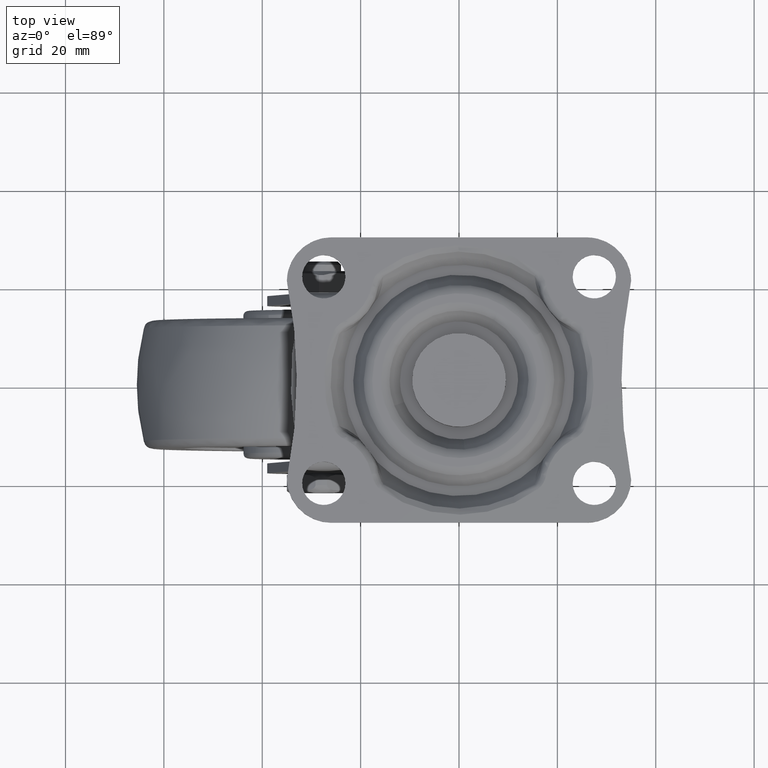
[diagram: clean part render]
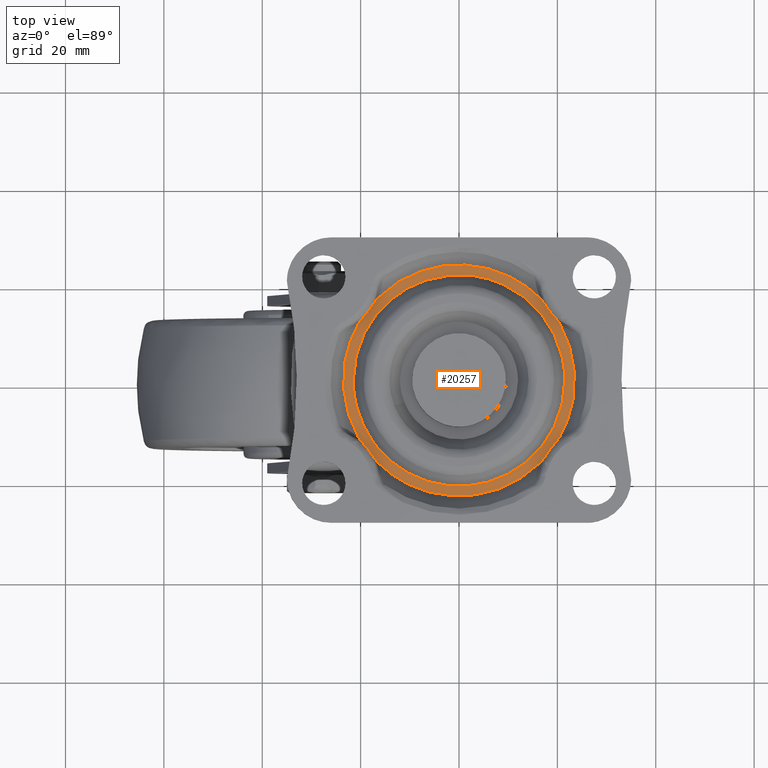
[diagram: same view with one face highlighted and labeled with its STEP entity id]
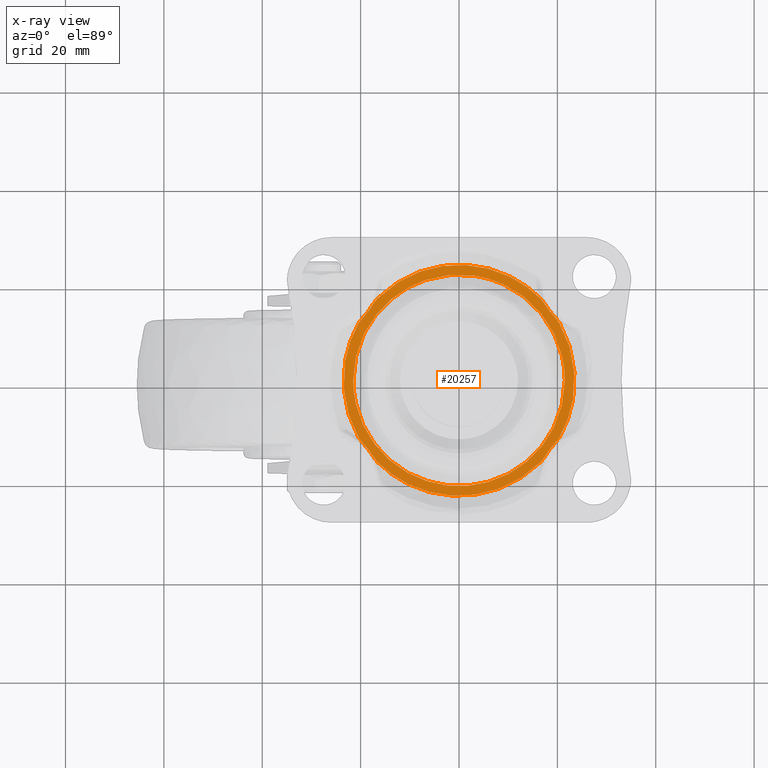
[diagram: x-ray of the same camera — body ghosted, the highlighted face saturated]
A machine part, top view. The second image highlights one B-rep face of the part: STEP entity #20257.
The next image is the same camera in x-ray: the body ghosted, the highlighted face saturated — about 0% of this face is hidden behind the body in this view.
In plain terms, the highlighted face is a freeform B-spline surface patch.
Its self-contained STEP definition (entity closure, byte-faithful):
#10256=CARTESIAN_POINT('',(-6.822050112745521,20.388958586924641,-4.700001000005539));
#10257=VERTEX_POINT('',#10256);
#10263=CARTESIAN_POINT('',(-21.500000000000000,-1.421085E-014,-4.700000999999900));
#10264=VERTEX_POINT('',#10263);
#10265=CARTESIAN_POINT('',(-21.500000000000000,-1.421085E-014,-4.700000999999900));
#10266=CARTESIAN_POINT('',(-21.499999999999996,15.477785254703813,-4.700000999999900));
#10267=CARTESIAN_POINT('',(-6.822050112745521,20.388958586924645,-4.700001000005539));
#10275=(BOUNDED_CURVE()B_SPLINE_CURVE(2,(#10265,#10266,#10267),.UNSPECIFIED.,.F.,.U.)B_SPLINE_CURVE_WITH_KNOTS((3,3),(0.0,0.196058979253503),.UNSPECIFIED.)CURVE()GEOMETRIC_REPRESENTATION_ITEM()RATIONAL_B_SPLINE_CURVE((1.0,0.770302617956647,0.900879109998267))REPRESENTATION_ITEM(''));
#10276=EDGE_CURVE('',#10264,#10257,#10275,.T.);
#10278=CARTESIAN_POINT('',(21.500000000000000,-1.421085E-014,-4.700000999999900));
#10279=VERTEX_POINT('',#10278);
#10280=CARTESIAN_POINT('',(21.500000000000000,-1.421085E-014,-4.700000999999900));
#10281=CARTESIAN_POINT('',(21.499999999999996,-21.500000000000011,-4.700000999999900));
#10282=CARTESIAN_POINT('',(0.0,-21.500000000000011,-4.700000999999900));
#10283=CARTESIAN_POINT('',(-21.499999999999996,-21.500000000000011,-4.700000999999900));
#10284=CARTESIAN_POINT('',(-21.500000000000000,-1.421085E-014,-4.700000999999900));
#10292=(BOUNDED_CURVE()B_SPLINE_CURVE(2,(#10280,#10281,#10282,#10283,#10284),.UNSPECIFIED.,.F.,.U.)B_SPLINE_CURVE_WITH_KNOTS((3,2,3),(0.500000000000000,0.750000000000000,1.0),.UNSPECIFIED.)CURVE()GEOMETRIC_REPRESENTATION_ITEM()RATIONAL_B_SPLINE_CURVE((1.0,0.707106781186548,1.0,0.707106781186548,1.0))REPRESENTATION_ITEM(''));
#10293=EDGE_CURVE('',#10279,#10264,#10292,.T.);
#10295=CARTESIAN_POINT('',(8.950568800993430,19.548332873646761,-4.700001000008620));
#10296=VERTEX_POINT('',#10295);
#10297=CARTESIAN_POINT('',(8.950568800993430,19.548332873646771,-4.700001000008620));
#10298=CARTESIAN_POINT('',(21.500000000000004,13.802341740433707,-4.700000999999900));
#10299=CARTESIAN_POINT('',(21.500000000000000,-1.421085E-014,-4.700000999999900));
#10307=(BOUNDED_CURVE()B_SPLINE_CURVE(2,(#10297,#10298,#10299),.UNSPECIFIED.,.F.,.U.)B_SPLINE_CURVE_WITH_KNOTS((3,3),(0.320706039691641,0.500000000000000),.UNSPECIFIED.)CURVE()GEOMETRIC_REPRESENTATION_ITEM()RATIONAL_B_SPLINE_CURVE((0.881182210615105,0.789944059405893,1.0))REPRESENTATION_ITEM(''));
#10308=EDGE_CURVE('',#10296,#10279,#10307,.T.);
#10348=CARTESIAN_POINT('',(-6.822050112745521,20.388958586924645,-4.700001000005539));
#10349=CARTESIAN_POINT('',(-3.501497348530279,21.499999999999989,-4.700000999999900));
#10350=CARTESIAN_POINT('',(0.0,21.499999999999989,-4.700000999999900));
#10351=CARTESIAN_POINT('',(4.688064429196757,21.499999999999986,-4.700000999999901));
#10352=CARTESIAN_POINT('',(8.950568800993430,19.548332873646768,-4.700001000008620));
#10360=(BOUNDED_CURVE()B_SPLINE_CURVE(2,(#10348,#10349,#10350,#10351,#10352),.UNSPECIFIED.,.F.,.U.)B_SPLINE_CURVE_WITH_KNOTS((3,2,3),(0.196058979253503,0.250000000000000,0.320706039691641),.UNSPECIFIED.)CURVE()GEOMETRIC_REPRESENTATION_ITEM()RATIONAL_B_SPLINE_CURVE((0.900879109998267,0.936804163229901,1.0,0.917162721780655,0.881182210615105))REPRESENTATION_ITEM(''));
#10361=EDGE_CURVE('',#10257,#10296,#10360,.T.);
#17231=CARTESIAN_POINT('',(-20.408410051931948,-11.651042835394721,-4.700000999999900));
#17232=VERTEX_POINT('',#17231);
#17233=CARTESIAN_POINT('',(-18.645571798962699,-13.819533196743141,-4.700000999999900));
#17234=VERTEX_POINT('',#17233);
#17235=CARTESIAN_POINT('',(-20.408410051931948,-11.651042835394721,-4.700000999999910));
#17236=CARTESIAN_POINT('',(-20.350043828154590,-11.753279334295261,-4.700000999999910));
#17237=CARTESIAN_POINT('',(-20.287095271038488,-11.851894629901510,-4.700000999999900));
#17238=CARTESIAN_POINT('',(-20.154868753026101,-12.044123389923380,-4.700000999999899));
#17239=CARTESIAN_POINT('',(-20.085568547275621,-12.137719275273190,-4.700000999999900));
#17240=CARTESIAN_POINT('',(-19.871112444650660,-12.413326438443690,-4.700000999999899));
#17241=CARTESIAN_POINT('',(-19.719464418665989,-12.590207290871261,-4.700000999999900));
#17242=CARTESIAN_POINT('',(-19.410957672202681,-12.939851228058259,-4.700000999999900));
#17243=CARTESIAN_POINT('',(-19.254092620306430,-13.112570498766059,-4.700000999999901));
#17244=CARTESIAN_POINT('',(-18.944842763453860,-13.461754002069430,-4.700000999999901));
#17245=CARTESIAN_POINT('',(-18.792519321275648,-13.638328224797560,-4.700000999999900));
#17246=CARTESIAN_POINT('',(-18.645571798962699,-13.819533196743141,-4.700000999999900));
#17247=B_SPLINE_CURVE_WITH_KNOTS('',3,(#17235,#17236,#17237,#17238,#17239,#17240,#17241,#17242,#17243,#17244,#17245,#17246),.UNSPECIFIED.,.F.,.U.,(4,2,2,2,2,4),(0.0,0.125000000000001,0.250000000000001,0.500000000000001,0.750000000000000,1.0),.UNSPECIFIED.);
#17248=EDGE_CURVE('',#17232,#17234,#17247,.T.);
#17899=CARTESIAN_POINT('',(-18.645571798962500,13.819533196743439,-4.700000999999900));
#17900=VERTEX_POINT('',#17899);
#17901=CARTESIAN_POINT('',(-20.408410051931948,11.651042835394740,-4.700000999999900));
#17902=VERTEX_POINT('',#17901);
#17903=CARTESIAN_POINT('',(-18.645571798962500,13.819533196743439,-4.700000999999900));
#17904=CARTESIAN_POINT('',(-18.792638975046462,13.638180676490290,-4.700000999999901));
#17905=CARTESIAN_POINT('',(-18.945065406842541,13.461496921189360,-4.700000999999900));
#17906=CARTESIAN_POINT('',(-19.254497693496059,13.112118817146690,-4.700000999999899));
#17907=CARTESIAN_POINT('',(-19.411414414806359,12.939346818894750,-4.700000999999899));
#17908=CARTESIAN_POINT('',(-19.720177552028179,12.589385779164299,-4.700000999999899));
#17909=CARTESIAN_POINT('',(-19.872174260341492,12.412049992936410,-4.700000999999901));
#17910=CARTESIAN_POINT('',(-20.086589551779429,12.136362585833240,-4.700000999999899));
#17911=CARTESIAN_POINT('',(-20.155800822740520,12.042823126515090,-4.700000999999899));
#17912=CARTESIAN_POINT('',(-20.287681277963710,11.850987304416060,-4.700000999999900));
#17913=CARTESIAN_POINT('',(-20.350371150280910,11.752705984401411,-4.700000999999898));
#17914=CARTESIAN_POINT('',(-20.408410051931948,11.651042835394740,-4.700000999999900));
#17915=B_SPLINE_CURVE_WITH_KNOTS('',3,(#17903,#17904,#17905,#17906,#17907,#17908,#17909,#17910,#17911,#17912,#17913,#17914),.UNSPECIFIED.,.F.,.U.,(4,2,2,2,2,4),(0.0,0.250000000000000,0.500000000000001,0.750000000000001,0.875000000000001,1.0),.UNSPECIFIED.);
#17916=EDGE_CURVE('',#17900,#17902,#17915,.T.);
#18176=CARTESIAN_POINT('',(-18.241451118698201,-14.348738849470500,-4.700000999999900));
#18177=VERTEX_POINT('',#18176);
#18178=CARTESIAN_POINT('',(-16.613661093132201,-16.620356948108750,-4.700000999999900));
#18179=VERTEX_POINT('',#18178);
#18180=CARTESIAN_POINT('',(-18.241451118698201,-14.348738849470500,-4.700000999999900));
#18181=CARTESIAN_POINT('',(-18.105222901006069,-14.538368392495560,-4.700000999999901));
#18182=CARTESIAN_POINT('',(-17.974909846298338,-14.731938726663930,-4.700000999999902));
#18183=CARTESIAN_POINT('',(-17.719338176386682,-15.122446756218521,-4.700000999999899));
#18184=CARTESIAN_POINT('',(-17.593981181951190,-15.319318909538451,-4.700000999999900));
#18185=CARTESIAN_POINT('',(-17.337670952776449,-15.709334897232081,-4.700000999999901));
#18186=CARTESIAN_POINT('',(-17.206615725549518,-15.902662359925889,-4.700000999999900));
#18187=CARTESIAN_POINT('',(-16.997115174638431,-16.182102841613158,-4.700000999999900));
#18188=CARTESIAN_POINT('',(-16.925100789721341,-16.273501741183079,-4.700000999999900));
#18189=CARTESIAN_POINT('',(-16.774760375425871,-16.451240867263252,-4.700000999999901));
#18190=CARTESIAN_POINT('',(-16.696454305374601,-16.537597090826409,-4.700000999999900));
#18191=CARTESIAN_POINT('',(-16.613661093132201,-16.620356948108750,-4.700000999999900));
#18192=B_SPLINE_CURVE_WITH_KNOTS('',3,(#18180,#18181,#18182,#18183,#18184,#18185,#18186,#18187,#18188,#18189,#18190,#18191),.UNSPECIFIED.,.F.,.U.,(4,2,2,2,2,4),(0.0,0.250000000000000,0.500000000000000,0.750000000000000,0.875000000000000,1.0),.UNSPECIFIED.);
#18193=EDGE_CURVE('',#18177,#18179,#18192,.T.);
#18589=CARTESIAN_POINT('',(-16.613661093132201,16.620356948108650,-4.700000999999900));
#18590=VERTEX_POINT('',#18589);
#18591=CARTESIAN_POINT('',(-18.241451118698450,14.348738849470161,-4.700000999999900));
#18592=VERTEX_POINT('',#18591);
#18593=CARTESIAN_POINT('',(-16.613661093132201,16.620356948108650,-4.700000999999900));
#18594=CARTESIAN_POINT('',(-16.696921234442978,16.537130349869969,-4.700000999999901));
#18595=CARTESIAN_POINT('',(-16.775481379604312,16.450436630589142,-4.700000999999901));
#18596=CARTESIAN_POINT('',(-16.926109742955209,16.272260188825729,-4.700000999999899));
#18597=CARTESIAN_POINT('',(-16.998155145098622,16.180760635266878,-4.700000999999900));
#18598=CARTESIAN_POINT('',(-17.207567537756319,15.901301911757690,-4.700000999999901));
#18599=CARTESIAN_POINT('',(-17.338275697591101,15.708430616088330,-4.700000999999900));
#18600=CARTESIAN_POINT('',(-17.594347525219810,15.318745468154830,-4.700000999999901));
#18601=CARTESIAN_POINT('',(-17.719667257988430,15.121937044658621,-4.700000999999900));
#18602=CARTESIAN_POINT('',(-17.975099230377381,14.731656247764770,-4.700000999999902));
#18603=CARTESIAN_POINT('',(-18.105333736206902,14.538214110006670,-4.700000999999900));
#18604=CARTESIAN_POINT('',(-18.241451118698450,14.348738849470161,-4.700000999999900));
#18605=B_SPLINE_CURVE_WITH_KNOTS('',3,(#18593,#18594,#18595,#18596,#18597,#18598,#18599,#18600,#18601,#18602,#18603,#18604),.UNSPECIFIED.,.F.,.U.,(4,2,2,2,2,4),(0.0,0.125000000000000,0.250000000000001,0.500000000000000,0.750000000000000,1.0),.UNSPECIFIED.);
#18606=EDGE_CURVE('',#18590,#18592,#18605,.T.);
#18870=CARTESIAN_POINT('',(16.613641978879901,-16.620376054638498,-4.700000999999900));
#18871=VERTEX_POINT('',#18870);
#18872=CARTESIAN_POINT('',(18.241354280531102,-14.348859729777560,-4.700000999999900));
#18873=VERTEX_POINT('',#18872);
#18874=CARTESIAN_POINT('',(16.613641978879901,-16.620376054638449,-4.700000999999910));
#18875=CARTESIAN_POINT('',(16.696898420147850,-16.537153346372769,-4.700000999999910));
#18876=CARTESIAN_POINT('',(16.775455244506240,-16.450463797680850,-4.700000999999901));
#18877=CARTESIAN_POINT('',(16.926077372885960,-16.272295998246531,-4.700000999999901));
#18878=CARTESIAN_POINT('',(16.998119864801769,-16.180800919338878,-4.700000999999900));
#18879=CARTESIAN_POINT('',(17.207523795515449,-15.901355819252860,-4.700000999999899));
#18880=CARTESIAN_POINT('',(17.338226666579150,-15.708493867539390,-4.700000999999900));
#18881=CARTESIAN_POINT('',(17.594287175044631,-15.318826861407910,-4.700000999999901));
#18882=CARTESIAN_POINT('',(17.719600870524669,-15.122027218396941,-4.700000999999900));
#18883=CARTESIAN_POINT('',(17.975018961394980,-14.731762737127131,-4.700000999999901));
#18884=CARTESIAN_POINT('',(18.105245595680710,-14.538328103633351,-4.700000999999900));
#18885=CARTESIAN_POINT('',(18.241354280531102,-14.348859729777560,-4.700000999999900));
#18886=B_SPLINE_CURVE_WITH_KNOTS('',3,(#18874,#18875,#18876,#18877,#18878,#18879,#18880,#18881,#18882,#18883,#18884,#18885),.UNSPECIFIED.,.F.,.U.,(4,2,2,2,2,4),(0.0,0.125000000000000,0.250000000000000,0.500000000000000,0.750000000000000,1.0),.UNSPECIFIED.);
#18887=EDGE_CURVE('',#18871,#18873,#18886,.T.);
#19267=CARTESIAN_POINT('',(18.241354280531350,14.348859729777260,-4.700000999999900));
#19268=VERTEX_POINT('',#19267);
#19269=CARTESIAN_POINT('',(16.613641978879901,16.620376054638449,-4.700000999999900));
#19270=VERTEX_POINT('',#19269);
#19271=CARTESIAN_POINT('',(18.241354280531350,14.348859729777260,-4.700000999999900));
#19272=CARTESIAN_POINT('',(18.105134813010999,14.538482317248070,-4.700000999999901));
#19273=CARTESIAN_POINT('',(17.974829659893370,14.732045098396290,-4.700000999999900));
#19274=CARTESIAN_POINT('',(17.719271912946521,15.122536741832061,-4.700000999999901));
#19275=CARTESIAN_POINT('',(17.593920973074439,15.319400084698421,-4.700000999999899));
#19276=CARTESIAN_POINT('',(17.337622052858940,15.709397948800170,-4.700000999999900));
#19277=CARTESIAN_POINT('',(17.206572027899270,15.902716197980160,-4.700000999999900));
#19278=CARTESIAN_POINT('',(16.997079852535190,16.182143169538531,-4.700000999999898));
#19279=CARTESIAN_POINT('',(16.925068360298379,16.273537614314190,-4.700000999999899));
#19280=CARTESIAN_POINT('',(16.774734180240451,16.451268097291361,-4.700000999999901));
#19281=CARTESIAN_POINT('',(16.696431447711081,16.537620129606399,-4.700000999999898));
#19282=CARTESIAN_POINT('',(16.613641978879901,16.620376054638449,-4.700000999999900));
#19283=B_SPLINE_CURVE_WITH_KNOTS('',3,(#19271,#19272,#19273,#19274,#19275,#19276,#19277,#19278,#19279,#19280,#19281,#19282),.UNSPECIFIED.,.F.,.U.,(4,2,2,2,2,4),(0.0,0.249999999999999,0.499999999999999,0.749999999999999,0.875000000000000,1.0),.UNSPECIFIED.);
#19284=EDGE_CURVE('',#19268,#19270,#19283,.T.);
#19544=CARTESIAN_POINT('',(18.645658066967151,-13.819414487684540,-4.700000999999900));
#19545=VERTEX_POINT('',#19544);
#19546=CARTESIAN_POINT('',(20.408419363974598,-11.651026524051341,-4.700000999999900));
#19547=VERTEX_POINT('',#19546);
#19548=CARTESIAN_POINT('',(18.645658066967151,-13.819414487684540,-4.700000999999910));
#19549=CARTESIAN_POINT('',(18.792720900591490,-13.638072291886040,-4.700000999999910));
#19550=CARTESIAN_POINT('',(18.945142188467049,-13.461398201603430,-4.700000999999899));
#19551=CARTESIAN_POINT('',(19.254562455892099,-13.112037952398859,-4.700000999999900));
#19552=CARTESIAN_POINT('',(19.411472332506658,-12.939274169990250,-4.700000999999901));
#19553=CARTESIAN_POINT('',(19.720221086247800,-12.589328920600030,-4.700000999999900));
#19554=CARTESIAN_POINT('',(19.872210338210429,-12.412000632400479,-4.700000999999901));
#19555=CARTESIAN_POINT('',(20.086614898369291,-12.136324937867730,-4.700000999999899));
#19556=CARTESIAN_POINT('',(20.155822666231579,-12.042789466427539,-4.700000999999900));
#19557=CARTESIAN_POINT('',(20.287696492201871,-11.850961980657290,-4.700000999999901));
#19558=CARTESIAN_POINT('',(20.350383234461489,-11.752685005981711,-4.700000999999901));
#19559=CARTESIAN_POINT('',(20.408419363974598,-11.651026524051341,-4.700000999999900));
#19560=B_SPLINE_CURVE_WITH_KNOTS('',3,(#19548,#19549,#19550,#19551,#19552,#19553,#19554,#19555,#19556,#19557,#19558,#19559),.UNSPECIFIED.,.F.,.U.,(4,2,2,2,2,4),(0.0,0.250000000000000,0.500000000000001,0.750000000000001,0.875000000000000,1.0),.UNSPECIFIED.);
#19561=EDGE_CURVE('',#19545,#19547,#19560,.T.);
#19815=CARTESIAN_POINT('',(18.645658066966899,13.819414487684840,-4.700000999999900));
#19816=VERTEX_POINT('',#19815);
#19842=CARTESIAN_POINT('',(20.408419363974549,11.651026524051360,-4.700000999999900));
#19843=VERTEX_POINT('',#19842);
#19844=CARTESIAN_POINT('',(20.408419363974549,11.651026524051360,-4.700000999999900));
#19845=CARTESIAN_POINT('',(20.350055882767968,11.753258408730909,-4.700000999999901));
#19846=CARTESIAN_POINT('',(20.287110440064449,11.851869380476121,-4.700000999999901));
#19847=CARTESIAN_POINT('',(20.154890550227272,12.044089803543940,-4.700000999999900));
#19848=CARTESIAN_POINT('',(20.085593862091539,12.137681678827970,-4.700000999999901));
#19849=CARTESIAN_POINT('',(19.871148577320621,12.413277016234071,-4.700000999999899));
#19850=CARTESIAN_POINT('',(19.719508110907551,12.590150252957621,-4.700000999999900));
#19851=CARTESIAN_POINT('',(19.411015762916691,12.939778385255700,-4.700000999999900));
#19852=CARTESIAN_POINT('',(19.254157531372481,13.112489464694590,-4.700000999999899));
#19853=CARTESIAN_POINT('',(18.944919636722691,13.461655171769710,-4.700000999999900));
#19854=CARTESIAN_POINT('',(18.792601299379658,13.638219771339770,-4.700000999999898));
#19855=CARTESIAN_POINT('',(18.645658066966899,13.819414487684840,-4.700000999999900));
#19856=B_SPLINE_CURVE_WITH_KNOTS('',3,(#19844,#19845,#19846,#19847,#19848,#19849,#19850,#19851,#19852,#19853,#19854,#19855),.UNSPECIFIED.,.F.,.U.,(4,2,2,2,2,4),(0.0,0.124999999999999,0.249999999999998,0.499999999999999,0.749999999999999,1.0),.UNSPECIFIED.);
#19857=EDGE_CURVE('',#19843,#19816,#19856,.T.);
#20007=CARTESIAN_POINT('',(-18.645571798962500,13.819533196743439,-4.700000999999900));
#20008=CARTESIAN_POINT('',(-18.435780575563530,14.078232439521125,-4.700000999999900));
#20009=CARTESIAN_POINT('',(-18.241451118698450,14.348738849470161,-4.700000999999900));
#20017=(BOUNDED_CURVE()B_SPLINE_CURVE(2,(#20007,#20008,#20009),.UNSPECIFIED.,.F.,.U.)CURVE()GEOMETRIC_REPRESENTATION_ITEM()QUASI_UNIFORM_CURVE()RATIONAL_B_SPLINE_CURVE((1.0,0.999573458450863,1.0))REPRESENTATION_ITEM(''));
#20018=EDGE_CURVE('',#17900,#18592,#20017,.T.);
#20038=CARTESIAN_POINT('',(-18.241451118698201,-14.348738849470500,-4.700000999999900));
#20039=CARTESIAN_POINT('',(-18.435780575563502,-14.078232439521150,-4.700000999999900));
#20040=CARTESIAN_POINT('',(-18.645571798962649,-13.819533196743100,-4.700000999999900));
#20048=(BOUNDED_CURVE()B_SPLINE_CURVE(2,(#20038,#20039,#20040),.UNSPECIFIED.,.F.,.U.)CURVE()GEOMETRIC_REPRESENTATION_ITEM()QUASI_UNIFORM_CURVE()RATIONAL_B_SPLINE_CURVE((1.0,0.999573458450862,1.0))REPRESENTATION_ITEM(''));
#20049=EDGE_CURVE('',#18177,#17234,#20048,.T.);
#20073=CARTESIAN_POINT('',(18.241354280531329,14.348859729777249,-4.700000999999900));
#20074=CARTESIAN_POINT('',(18.435768284802592,14.078228173204984,-4.700000999999900));
#20075=CARTESIAN_POINT('',(18.645658066966899,13.819414487684840,-4.700000999999900));
#20083=(BOUNDED_CURVE()B_SPLINE_CURVE(2,(#20073,#20074,#20075),.UNSPECIFIED.,.F.,.U.)CURVE()GEOMETRIC_REPRESENTATION_ITEM()QUASI_UNIFORM_CURVE()RATIONAL_B_SPLINE_CURVE((1.0,0.999573071946864,1.0))REPRESENTATION_ITEM(''));
#20084=EDGE_CURVE('',#19268,#19816,#20083,.T.);
#20104=CARTESIAN_POINT('',(18.645658066967151,-13.819414487684540,-4.700000999999900));
#20105=CARTESIAN_POINT('',(18.435768284802567,-14.078228173204996,-4.700000999999900));
#20106=CARTESIAN_POINT('',(18.241354280531102,-14.348859729777560,-4.700000999999900));
#20114=(BOUNDED_CURVE()B_SPLINE_CURVE(2,(#20104,#20105,#20106),.UNSPECIFIED.,.F.,.U.)CURVE()GEOMETRIC_REPRESENTATION_ITEM()QUASI_UNIFORM_CURVE()RATIONAL_B_SPLINE_CURVE((1.0,0.999573071946863,1.0))REPRESENTATION_ITEM(''));
#20115=EDGE_CURVE('',#19545,#18873,#20114,.T.);
#20175=CARTESIAN_POINT('',(20.408419363974549,11.651026524051360,-4.700000999999900));
#20176=CARTESIAN_POINT('',(27.059910429655567,2.568779E-014,-4.700000999999900));
#20177=CARTESIAN_POINT('',(20.408419363974581,-11.651026524051330,-4.700000999999900));
#20185=(BOUNDED_CURVE()B_SPLINE_CURVE(2,(#20175,#20176,#20177),.UNSPECIFIED.,.F.,.U.)CURVE()GEOMETRIC_REPRESENTATION_ITEM()QUASI_UNIFORM_CURVE()RATIONAL_B_SPLINE_CURVE((1.0,0.868443377190407,1.0))REPRESENTATION_ITEM(''));
#20186=EDGE_CURVE('',#19843,#19547,#20185,.T.);
#20192=CARTESIAN_POINT('',(-25.847649908904870,-25.847649908899221,-4.700000999999900));
#20193=CARTESIAN_POINT('',(25.847651169543109,-25.847649908899221,-4.700000999999900));
#20194=CARTESIAN_POINT('',(-25.847649908904870,25.847651169539990,-4.700000999999900));
#20195=CARTESIAN_POINT('',(25.847651169543109,25.847651169539990,-4.700000999999900));
#20196=B_SPLINE_SURFACE_WITH_KNOTS('',1,1,((#20192,#20194),(#20193,#20195)),.UNSPECIFIED.,.F.,.F.,.U.,(2,2),(2,2),(0.0,51.695301078447983),(0.0,51.695301078439222),.UNSPECIFIED.);
#20197=CARTESIAN_POINT('',(-20.408410051931959,-11.651042835394730,-4.700000999999900));
#20198=CARTESIAN_POINT('',(-27.059922776675180,3.136380E-015,-4.700000999999900));
#20199=CARTESIAN_POINT('',(-20.408410051931948,11.651042835394730,-4.700000999999900));
#20207=(BOUNDED_CURVE()B_SPLINE_CURVE(2,(#20197,#20198,#20199),.UNSPECIFIED.,.F.,.U.)CURVE()GEOMETRIC_REPRESENTATION_ITEM()QUASI_UNIFORM_CURVE()RATIONAL_B_SPLINE_CURVE((1.0,0.868442980933274,1.0))REPRESENTATION_ITEM(''));
#20208=EDGE_CURVE('',#17232,#17902,#20207,.T.);
#20209=ORIENTED_EDGE('',*,*,#20208,.F.);
#20210=ORIENTED_EDGE('',*,*,#17248,.T.);
#20211=ORIENTED_EDGE('',*,*,#20049,.F.);
#20212=ORIENTED_EDGE('',*,*,#18193,.T.);
#20213=CARTESIAN_POINT('',(16.613641978879890,-16.620376054638491,-4.700000999999900));
#20214=CARTESIAN_POINT('',(-0.000019106531315,-33.227305784994371,-4.700000999999899));
#20215=CARTESIAN_POINT('',(-16.613661093132190,-16.620356948108729,-4.700000999999900));
#20223=(BOUNDED_CURVE()B_SPLINE_CURVE(2,(#20213,#20214,#20215),.UNSPECIFIED.,.F.,.U.)CURVE()GEOMETRIC_REPRESENTATION_ITEM()QUASI_UNIFORM_CURVE()RATIONAL_B_SPLINE_CURVE((1.0,0.707249638356440,1.0))REPRESENTATION_ITEM(''));
#20224=EDGE_CURVE('',#18871,#18179,#20223,.T.);
#20225=ORIENTED_EDGE('',*,*,#20224,.F.);
#20226=ORIENTED_EDGE('',*,*,#18887,.T.);
#20227=ORIENTED_EDGE('',*,*,#20115,.F.);
#20228=ORIENTED_EDGE('',*,*,#19561,.T.);
#20229=ORIENTED_EDGE('',*,*,#20186,.F.);
#20230=ORIENTED_EDGE('',*,*,#19857,.T.);
#20231=ORIENTED_EDGE('',*,*,#20084,.F.);
#20232=ORIENTED_EDGE('',*,*,#19284,.T.);
#20233=CARTESIAN_POINT('',(-16.613661093132219,16.620356948108679,-4.700000999999900));
#20234=CARTESIAN_POINT('',(-0.000019106531333,33.227305784994378,-4.700000999999899));
#20235=CARTESIAN_POINT('',(16.613641978879901,16.620376054638449,-4.700000999999900));
#20243=(BOUNDED_CURVE()B_SPLINE_CURVE(2,(#20233,#20234,#20235),.UNSPECIFIED.,.F.,.U.)CURVE()GEOMETRIC_REPRESENTATION_ITEM()QUASI_UNIFORM_CURVE()RATIONAL_B_SPLINE_CURVE((1.0,0.707249638356439,1.0))REPRESENTATION_ITEM(''));
#20244=EDGE_CURVE('',#18590,#19270,#20243,.T.);
#20245=ORIENTED_EDGE('',*,*,#20244,.F.);
#20246=ORIENTED_EDGE('',*,*,#18606,.T.);
#20247=ORIENTED_EDGE('',*,*,#20018,.F.);
#20248=ORIENTED_EDGE('',*,*,#17916,.T.);
#20249=EDGE_LOOP('',(#20209,#20210,#20211,#20212,#20225,#20226,#20227,#20228,#20229,#20230,#20231,#20232,#20245,#20246,#20247,#20248));
#20250=FACE_OUTER_BOUND('',#20249,.T.);
#20251=ORIENTED_EDGE('',*,*,#10293,.T.);
#20252=ORIENTED_EDGE('',*,*,#10276,.T.);
#20253=ORIENTED_EDGE('',*,*,#10361,.T.);
#20254=ORIENTED_EDGE('',*,*,#10308,.T.);
#20255=EDGE_LOOP('',(#20251,#20252,#20253,#20254));
#20256=FACE_BOUND('',#20255,.T.);
#20257=ADVANCED_FACE('',(#20250,#20256),#20196,.T.);